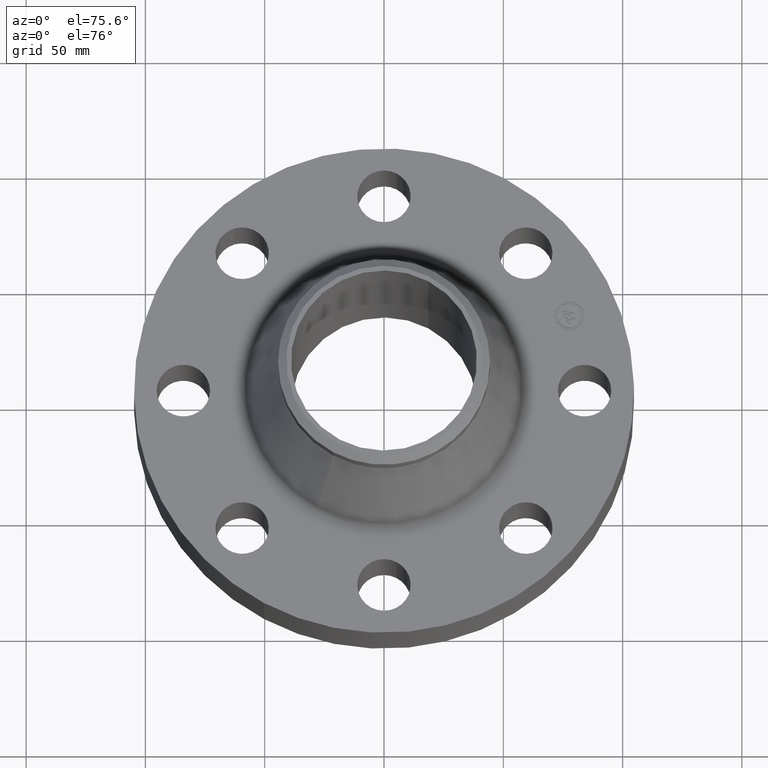
[diagram: clean part render]
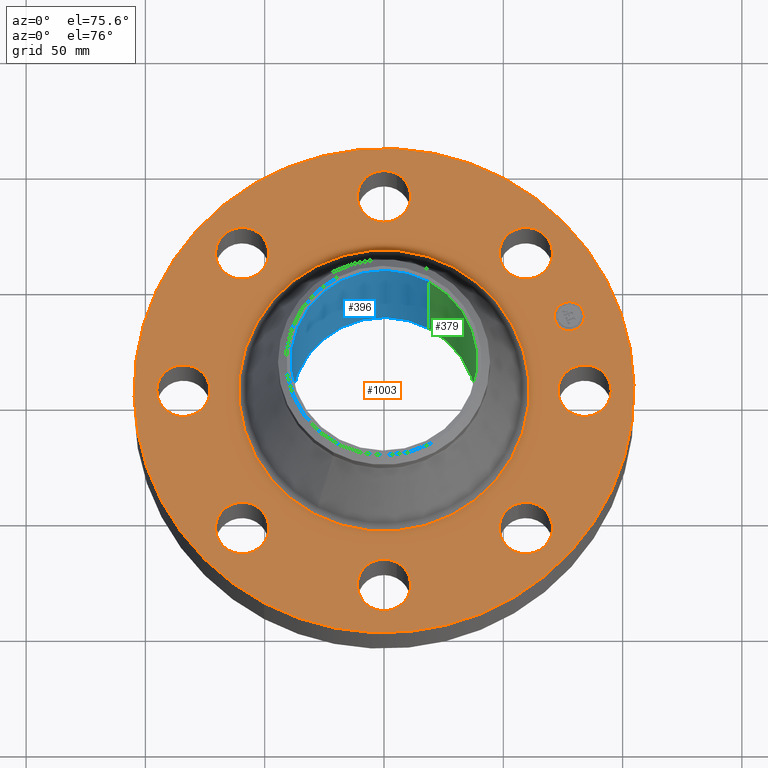
[diagram: same view with three faces highlighted in distinct colors, each labeled with its STEP entity id]
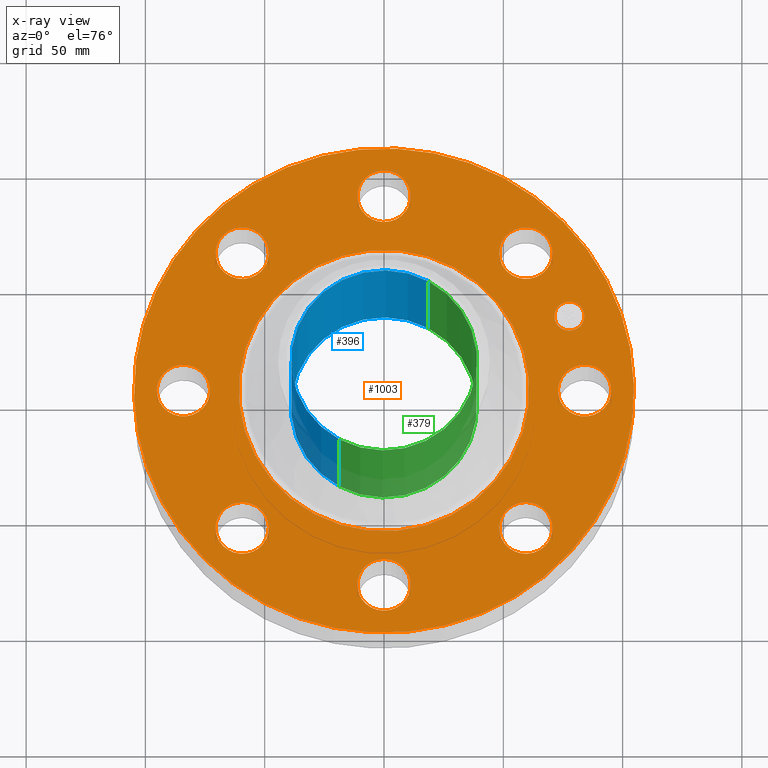
[diagram: x-ray of the same camera — body ghosted, the three highlighted faces saturated]
A machine part, auxiliary view with three faces highlighted in distinct colors.
The next image is the same camera in x-ray (body ghosted, the three faces saturated) — at least one of them is partly hidden behind the body in this view.
Their STEP definitions:

[orange] entity #1003 — the highlighted planar face has unit normal (0, 0, -1).
#65=AXIS2_PLACEMENT_3D('Circle Axis2P3D',#63,#64,$) ;
#82=AXIS2_PLACEMENT_3D('Circle Axis2P3D',#80,#81,$) ;
#115=AXIS2_PLACEMENT_3D('Circle Axis2P3D',#113,#114,$) ;
#139=AXIS2_PLACEMENT_3D('Circle Axis2P3D',#137,#138,$) ;
#156=AXIS2_PLACEMENT_3D('Circle Axis2P3D',#154,#155,$) ;
#191=AXIS2_PLACEMENT_3D('Circle Axis2P3D',#189,#190,$) ;
#660=AXIS2_PLACEMENT_3D('Circle Axis2P3D',#658,#659,$) ;
#672=AXIS2_PLACEMENT_3D('Circle Axis2P3D',#670,#671,$) ;
#703=AXIS2_PLACEMENT_3D('Circle Axis2P3D',#701,#702,$) ;
#715=AXIS2_PLACEMENT_3D('Circle Axis2P3D',#713,#714,$) ;
#746=AXIS2_PLACEMENT_3D('Circle Axis2P3D',#744,#745,$) ;
#758=AXIS2_PLACEMENT_3D('Circle Axis2P3D',#756,#757,$) ;
#789=AXIS2_PLACEMENT_3D('Circle Axis2P3D',#787,#788,$) ;
#801=AXIS2_PLACEMENT_3D('Circle Axis2P3D',#799,#800,$) ;
#832=AXIS2_PLACEMENT_3D('Circle Axis2P3D',#830,#831,$) ;
#844=AXIS2_PLACEMENT_3D('Circle Axis2P3D',#842,#843,$) ;
#875=AXIS2_PLACEMENT_3D('Circle Axis2P3D',#873,#874,$) ;
#887=AXIS2_PLACEMENT_3D('Circle Axis2P3D',#885,#886,$) ;
#918=AXIS2_PLACEMENT_3D('Circle Axis2P3D',#916,#917,$) ;
#930=AXIS2_PLACEMENT_3D('Circle Axis2P3D',#928,#929,$) ;
#943=AXIS2_PLACEMENT_3D('Plane Axis2P3D',#940,#941,#942) ;
#987=AXIS2_PLACEMENT_3D('Circle Axis2P3D',#985,#986,$) ;
#996=AXIS2_PLACEMENT_3D('Circle Axis2P3D',#994,#995,$) ;
#46=CARTESIAN_POINT('Vertex',(2.92386367278,0.210947236987,1.06)) ;
#60=CARTESIAN_POINT('Vertex',(3.69613632725,-0.210947236987,1.06)) ;
#63=CARTESIAN_POINT('Axis2P3D Location',(3.31000000001,0.,1.06)) ;
#80=CARTESIAN_POINT('Axis2P3D Location',(3.31000000001,0.,1.06)) ;
#110=CARTESIAN_POINT('Vertex',(-1.97763034675,-3.62002806781,1.06)) ;
#113=CARTESIAN_POINT('Axis2P3D Location',(0.,0.,1.06)) ;
#117=CARTESIAN_POINT('Vertex',(1.97763034675,3.62002806781,1.06)) ;
#137=CARTESIAN_POINT('Axis2P3D Location',(0.,0.,1.06)) ;
#154=CARTESIAN_POINT('Axis2P3D Location',(0.,0.,1.06)) ;
#158=CARTESIAN_POINT('Vertex',(1.14876916276,2.10280784752,1.06)) ;
#160=CARTESIAN_POINT('Vertex',(-1.14876916276,-2.10280784752,1.06)) ;
#189=CARTESIAN_POINT('Axis2P3D Location',(0.,0.,1.06)) ;
#648=CARTESIAN_POINT('Vertex',(-2.21664605203,1.91832160854,1.06)) ;
#655=CARTESIAN_POINT('Vertex',(-2.46440083944,2.76272528293,1.06)) ;
#658=CARTESIAN_POINT('Axis2P3D Location',(-2.34052344574,2.34052344574,1.06)) ;
#670=CARTESIAN_POINT('Axis2P3D Location',(-2.34052344574,2.34052344574,1.06)) ;
#691=CARTESIAN_POINT('Vertex',(0.210947236987,-2.92386367278,1.06)) ;
#698=CARTESIAN_POINT('Vertex',(-0.210947236987,-3.69613632725,1.06)) ;
#701=CARTESIAN_POINT('Axis2P3D Location',(-3.56803423843E-016,-3.31000000001,1.06)) ;
#713=CARTESIAN_POINT('Axis2P3D Location',(-3.56803423843E-016,-3.31000000001,1.06)) ;
#734=CARTESIAN_POINT('Vertex',(-0.210947236987,2.92386367278,1.06)) ;
#741=CARTESIAN_POINT('Vertex',(0.210947236987,3.69613632725,1.06)) ;
#744=CARTESIAN_POINT('Axis2P3D Location',(-6.08037135779E-016,3.31000000001,1.06)) ;
#756=CARTESIAN_POINT('Axis2P3D Location',(-6.08037135779E-016,3.31000000001,1.06)) ;
#777=CARTESIAN_POINT('Vertex',(-1.91832160854,-2.21664605203,1.06)) ;
#784=CARTESIAN_POINT('Vertex',(-2.76272528293,-2.46440083944,1.06)) ;
#787=CARTESIAN_POINT('Axis2P3D Location',(-2.34052344574,-2.34052344574,1.06)) ;
#799=CARTESIAN_POINT('Axis2P3D Location',(-2.34052344574,-2.34052344574,1.06)) ;
#820=CARTESIAN_POINT('Vertex',(1.91832160854,2.21664605203,1.06)) ;
#827=CARTESIAN_POINT('Vertex',(2.76272528293,2.46440083944,1.06)) ;
#830=CARTESIAN_POINT('Axis2P3D Location',(2.34052344574,2.34052344574,1.06)) ;
#842=CARTESIAN_POINT('Axis2P3D Location',(2.34052344574,2.34052344574,1.06)) ;
#863=CARTESIAN_POINT('Vertex',(-2.92386367278,-0.210947236987,1.06)) ;
#870=CARTESIAN_POINT('Vertex',(-3.69613632725,0.210947236987,1.06)) ;
#873=CARTESIAN_POINT('Axis2P3D Location',(-3.31000000001,-4.05358090519E-016,1.06)) ;
#885=CARTESIAN_POINT('Axis2P3D Location',(-3.31000000001,-4.05358090519E-016,1.06)) ;
#906=CARTESIAN_POINT('Vertex',(2.21664605203,-1.91832160854,1.06)) ;
#913=CARTESIAN_POINT('Vertex',(2.46440083944,-2.76272528293,1.06)) ;
#916=CARTESIAN_POINT('Axis2P3D Location',(2.34052344574,-2.34052344574,1.06)) ;
#928=CARTESIAN_POINT('Axis2P3D Location',(2.34052344574,-2.34052344574,1.06)) ;
#940=CARTESIAN_POINT('Axis2P3D Location',(0.,4.12500000002,1.06)) ;
#985=CARTESIAN_POINT('Axis2P3D Location',(3.05804125262,1.26668216113,1.06)) ;
#989=CARTESIAN_POINT('Vertex',(2.96332710311,1.49534234543,1.06)) ;
#991=CARTESIAN_POINT('Vertex',(3.15275540214,1.03802197684,1.06)) ;
#994=CARTESIAN_POINT('Axis2P3D Location',(3.05804125262,1.26668216113,1.06)) ;
#64=DIRECTION('Axis2P3D Direction',(0.,-0.,-0.0393700787402)) ;
#81=DIRECTION('Axis2P3D Direction',(0.,-0.,-0.0393700787402)) ;
#114=DIRECTION('Axis2P3D Direction',(0.,0.,-0.0393700787402)) ;
#138=DIRECTION('Axis2P3D Direction',(0.,0.,-0.0393700787402)) ;
#155=DIRECTION('Axis2P3D Direction',(0.,0.,-0.0393700787402)) ;
#190=DIRECTION('Axis2P3D Direction',(0.,0.,-0.0393700787402)) ;
#659=DIRECTION('Axis2P3D Direction',(0.,0.,-0.0393700787402)) ;
#671=DIRECTION('Axis2P3D Direction',(0.,0.,-0.0393700787402)) ;
#702=DIRECTION('Axis2P3D Direction',(0.,-0.,-0.0393700787402)) ;
#714=DIRECTION('Axis2P3D Direction',(0.,-0.,-0.0393700787402)) ;
#745=DIRECTION('Axis2P3D Direction',(0.,0.,-0.0393700787402)) ;
#757=DIRECTION('Axis2P3D Direction',(0.,0.,-0.0393700787402)) ;
#788=DIRECTION('Axis2P3D Direction',(-0.,0.,-0.0393700787402)) ;
#800=DIRECTION('Axis2P3D Direction',(-0.,0.,-0.0393700787402)) ;
#831=DIRECTION('Axis2P3D Direction',(0.,0.,-0.0393700787402)) ;
#843=DIRECTION('Axis2P3D Direction',(0.,0.,-0.0393700787402)) ;
#874=DIRECTION('Axis2P3D Direction',(-0.,0.,-0.0393700787402)) ;
#886=DIRECTION('Axis2P3D Direction',(-0.,0.,-0.0393700787402)) ;
#917=DIRECTION('Axis2P3D Direction',(0.,-0.,-0.0393700787402)) ;
#929=DIRECTION('Axis2P3D Direction',(0.,-0.,-0.0393700787402)) ;
#941=DIRECTION('Axis2P3D Direction',(0.,0.,-0.0393700787402)) ;
#942=DIRECTION('Axis2P3D XDirection',(0.0393700787402,0.,0.)) ;
#986=DIRECTION('Axis2P3D Direction',(0.,0.,-0.0393700787402)) ;
#995=DIRECTION('Axis2P3D Direction',(0.,0.,-0.0393700787402)) ;
#946=ORIENTED_EDGE('',*,*,#141,.F.) ;
#947=ORIENTED_EDGE('',*,*,#119,.F.) ;
#950=ORIENTED_EDGE('',*,*,#67,.T.) ;
#951=ORIENTED_EDGE('',*,*,#84,.T.) ;
#954=ORIENTED_EDGE('',*,*,#193,.T.) ;
#955=ORIENTED_EDGE('',*,*,#162,.T.) ;
#958=ORIENTED_EDGE('',*,*,#932,.T.) ;
#959=ORIENTED_EDGE('',*,*,#920,.T.) ;
#962=ORIENTED_EDGE('',*,*,#717,.T.) ;
#963=ORIENTED_EDGE('',*,*,#705,.T.) ;
#966=ORIENTED_EDGE('',*,*,#803,.T.) ;
#967=ORIENTED_EDGE('',*,*,#791,.T.) ;
#970=ORIENTED_EDGE('',*,*,#889,.T.) ;
#971=ORIENTED_EDGE('',*,*,#877,.T.) ;
#974=ORIENTED_EDGE('',*,*,#674,.T.) ;
#975=ORIENTED_EDGE('',*,*,#662,.T.) ;
#978=ORIENTED_EDGE('',*,*,#760,.T.) ;
#979=ORIENTED_EDGE('',*,*,#748,.T.) ;
#982=ORIENTED_EDGE('',*,*,#846,.T.) ;
#983=ORIENTED_EDGE('',*,*,#834,.T.) ;
#1000=ORIENTED_EDGE('',*,*,#993,.T.) ;
#1001=ORIENTED_EDGE('',*,*,#998,.T.) ;
#952=FACE_BOUND('',#949,.T.) ;
#956=FACE_BOUND('',#953,.T.) ;
#960=FACE_BOUND('',#957,.T.) ;
#964=FACE_BOUND('',#961,.T.) ;
#968=FACE_BOUND('',#965,.T.) ;
#972=FACE_BOUND('',#969,.T.) ;
#976=FACE_BOUND('',#973,.T.) ;
#980=FACE_BOUND('',#977,.T.) ;
#984=FACE_BOUND('',#981,.T.) ;
#1002=FACE_BOUND('',#999,.T.) ;
#1003=ADVANCED_FACE('PartBody',(#948,#952,#956,#960,#964,#968,#972,#976,#980,#984,#1002),#944,.F.) ;
#66=CIRCLE('generated circle',#65,0.440000000002) ;
#83=CIRCLE('generated circle',#82,0.440000000002) ;
#116=CIRCLE('generated circle',#115,4.12500000002) ;
#140=CIRCLE('generated circle',#139,4.12500000002) ;
#157=CIRCLE('generated circle',#156,2.39613677258) ;
#192=CIRCLE('generated circle',#191,2.39613677258) ;
#661=CIRCLE('generated circle',#660,0.440000000002) ;
#673=CIRCLE('generated circle',#672,0.440000000002) ;
#704=CIRCLE('generated circle',#703,0.440000000002) ;
#716=CIRCLE('generated circle',#715,0.440000000002) ;
#747=CIRCLE('generated circle',#746,0.440000000002) ;
#759=CIRCLE('generated circle',#758,0.440000000002) ;
#790=CIRCLE('generated circle',#789,0.440000000002) ;
#802=CIRCLE('generated circle',#801,0.440000000002) ;
#833=CIRCLE('generated circle',#832,0.440000000002) ;
#845=CIRCLE('generated circle',#844,0.440000000002) ;
#876=CIRCLE('generated circle',#875,0.440000000002) ;
#888=CIRCLE('generated circle',#887,0.440000000002) ;
#919=CIRCLE('generated circle',#918,0.440000000002) ;
#931=CIRCLE('generated circle',#930,0.440000000002) ;
#988=CIRCLE('generated circle',#987,0.247500000001) ;
#997=CIRCLE('generated circle',#996,0.247500000001) ;
#67=EDGE_CURVE('',#47,#61,#66,.T.) ;
#84=EDGE_CURVE('',#61,#47,#83,.T.) ;
#119=EDGE_CURVE('',#111,#118,#116,.T.) ;
#141=EDGE_CURVE('',#118,#111,#140,.T.) ;
#162=EDGE_CURVE('',#159,#161,#157,.T.) ;
#193=EDGE_CURVE('',#161,#159,#192,.T.) ;
#662=EDGE_CURVE('',#649,#656,#661,.T.) ;
#674=EDGE_CURVE('',#656,#649,#673,.T.) ;
#705=EDGE_CURVE('',#692,#699,#704,.T.) ;
#717=EDGE_CURVE('',#699,#692,#716,.T.) ;
#748=EDGE_CURVE('',#735,#742,#747,.T.) ;
#760=EDGE_CURVE('',#742,#735,#759,.T.) ;
#791=EDGE_CURVE('',#778,#785,#790,.T.) ;
#803=EDGE_CURVE('',#785,#778,#802,.T.) ;
#834=EDGE_CURVE('',#821,#828,#833,.T.) ;
#846=EDGE_CURVE('',#828,#821,#845,.T.) ;
#877=EDGE_CURVE('',#864,#871,#876,.T.) ;
#889=EDGE_CURVE('',#871,#864,#888,.T.) ;
#920=EDGE_CURVE('',#907,#914,#919,.T.) ;
#932=EDGE_CURVE('',#914,#907,#931,.T.) ;
#993=EDGE_CURVE('',#990,#992,#988,.T.) ;
#998=EDGE_CURVE('',#992,#990,#997,.T.) ;
#945=EDGE_LOOP('',(#946,#947)) ;
#949=EDGE_LOOP('',(#950,#951)) ;
#953=EDGE_LOOP('',(#954,#955)) ;
#957=EDGE_LOOP('',(#958,#959)) ;
#961=EDGE_LOOP('',(#962,#963)) ;
#965=EDGE_LOOP('',(#966,#967)) ;
#969=EDGE_LOOP('',(#970,#971)) ;
#973=EDGE_LOOP('',(#974,#975)) ;
#977=EDGE_LOOP('',(#978,#979)) ;
#981=EDGE_LOOP('',(#982,#983)) ;
#999=EDGE_LOOP('',(#1000,#1001)) ;
#948=FACE_OUTER_BOUND('',#945,.T.) ;
#944=PLANE('',#943) ;
#47=VERTEX_POINT('',#46) ;
#61=VERTEX_POINT('',#60) ;
#111=VERTEX_POINT('',#110) ;
#118=VERTEX_POINT('',#117) ;
#159=VERTEX_POINT('',#158) ;
#161=VERTEX_POINT('',#160) ;
#649=VERTEX_POINT('',#648) ;
#656=VERTEX_POINT('',#655) ;
#692=VERTEX_POINT('',#691) ;
#699=VERTEX_POINT('',#698) ;
#735=VERTEX_POINT('',#734) ;
#742=VERTEX_POINT('',#741) ;
#778=VERTEX_POINT('',#777) ;
#785=VERTEX_POINT('',#784) ;
#821=VERTEX_POINT('',#820) ;
#828=VERTEX_POINT('',#827) ;
#864=VERTEX_POINT('',#863) ;
#871=VERTEX_POINT('',#870) ;
#907=VERTEX_POINT('',#906) ;
#914=VERTEX_POINT('',#913) ;
#990=VERTEX_POINT('',#989) ;
#992=VERTEX_POINT('',#991) ;

[blue] entity #396 — the highlighted cylindrical surface (partial cylindrical patch) has radius 38.9636 mm, axis along (0, 0, -1).
#343=AXIS2_PLACEMENT_3D('Cylinder Axis2P3D',#340,#341,#342) ;
#382=AXIS2_PLACEMENT_3D('Circle Axis2P3D',#380,#381,$) ;
#387=AXIS2_PLACEMENT_3D('Circle Axis2P3D',#385,#386,$) ;
#340=CARTESIAN_POINT('Axis2P3D Location',(0.,0.,1.49875000001)) ;
#349=CARTESIAN_POINT('Vertex',(0.735438776222,1.34621164995,3.06000000001)) ;
#351=CARTESIAN_POINT('Vertex',(-0.735438776222,-1.34621164995,3.06000000001)) ;
#354=CARTESIAN_POINT('Line Origine',(0.735438776222,1.34621164995,1.49875000001)) ;
#358=CARTESIAN_POINT('Vertex',(0.735438776222,1.34621164995,-0.0625000000003)) ;
#365=CARTESIAN_POINT('Vertex',(-0.735438776222,-1.34621164995,-0.0625000000003)) ;
#368=CARTESIAN_POINT('Line Origine',(-0.735438776222,-1.34621164995,1.49875000001)) ;
#380=CARTESIAN_POINT('Axis2P3D Location',(0.,0.,3.06000000001)) ;
#385=CARTESIAN_POINT('Axis2P3D Location',(0.,0.,-0.0625000000003)) ;
#341=DIRECTION('Axis2P3D Direction',(0.,0.,-0.0393700787402)) ;
#342=DIRECTION('Axis2P3D XDirection',(-0.0188750212049,-0.0345504945626,0.)) ;
#355=DIRECTION('Vector Direction',(0.,0.,-0.0393700787402)) ;
#369=DIRECTION('Vector Direction',(0.,0.,-0.0393700787402)) ;
#381=DIRECTION('Axis2P3D Direction',(0.,0.,-0.0393700787402)) ;
#386=DIRECTION('Axis2P3D Direction',(0.,0.,-0.0393700787402)) ;
#356=VECTOR('Line Direction',#355,0.0393700787402) ;
#370=VECTOR('Line Direction',#369,0.0393700787402) ;
#391=ORIENTED_EDGE('',*,*,#384,.F.) ;
#392=ORIENTED_EDGE('',*,*,#372,.T.) ;
#393=ORIENTED_EDGE('',*,*,#389,.T.) ;
#394=ORIENTED_EDGE('',*,*,#360,.F.) ;
#396=ADVANCED_FACE('PartBody',(#395),#344,.F.) ;
#383=CIRCLE('generated circle',#382,1.53400000001) ;
#388=CIRCLE('generated circle',#387,1.53400000001) ;
#344=CYLINDRICAL_SURFACE('generated cylinder',#343,1.53400000001) ;
#360=EDGE_CURVE('',#350,#359,#357,.T.) ;
#372=EDGE_CURVE('',#352,#366,#371,.T.) ;
#384=EDGE_CURVE('',#352,#350,#383,.T.) ;
#389=EDGE_CURVE('',#366,#359,#388,.T.) ;
#390=EDGE_LOOP('',(#391,#392,#393,#394)) ;
#395=FACE_OUTER_BOUND('',#390,.T.) ;
#357=LINE('Line',#354,#356) ;
#371=LINE('Line',#368,#370) ;
#350=VERTEX_POINT('',#349) ;
#352=VERTEX_POINT('',#351) ;
#359=VERTEX_POINT('',#358) ;
#366=VERTEX_POINT('',#365) ;

[green] entity #379 — the highlighted cylindrical surface (partial cylindrical patch) has radius 38.9636 mm, axis along (0, 0, -1).
#343=AXIS2_PLACEMENT_3D('Cylinder Axis2P3D',#340,#341,#342) ;
#347=AXIS2_PLACEMENT_3D('Circle Axis2P3D',#345,#346,$) ;
#363=AXIS2_PLACEMENT_3D('Circle Axis2P3D',#361,#362,$) ;
#340=CARTESIAN_POINT('Axis2P3D Location',(0.,0.,1.49875000001)) ;
#345=CARTESIAN_POINT('Axis2P3D Location',(0.,0.,3.06000000001)) ;
#349=CARTESIAN_POINT('Vertex',(0.735438776222,1.34621164995,3.06000000001)) ;
#351=CARTESIAN_POINT('Vertex',(-0.735438776222,-1.34621164995,3.06000000001)) ;
#354=CARTESIAN_POINT('Line Origine',(0.735438776222,1.34621164995,1.49875000001)) ;
#358=CARTESIAN_POINT('Vertex',(0.735438776222,1.34621164995,-0.0625000000003)) ;
#361=CARTESIAN_POINT('Axis2P3D Location',(0.,0.,-0.0625000000003)) ;
#365=CARTESIAN_POINT('Vertex',(-0.735438776222,-1.34621164995,-0.0625000000003)) ;
#368=CARTESIAN_POINT('Line Origine',(-0.735438776222,-1.34621164995,1.49875000001)) ;
#341=DIRECTION('Axis2P3D Direction',(0.,0.,-0.0393700787402)) ;
#342=DIRECTION('Axis2P3D XDirection',(-0.0188750212049,-0.0345504945626,0.)) ;
#346=DIRECTION('Axis2P3D Direction',(0.,0.,-0.0393700787402)) ;
#355=DIRECTION('Vector Direction',(0.,0.,-0.0393700787402)) ;
#362=DIRECTION('Axis2P3D Direction',(0.,0.,-0.0393700787402)) ;
#369=DIRECTION('Vector Direction',(0.,0.,-0.0393700787402)) ;
#356=VECTOR('Line Direction',#355,0.0393700787402) ;
#370=VECTOR('Line Direction',#369,0.0393700787402) ;
#374=ORIENTED_EDGE('',*,*,#353,.F.) ;
#375=ORIENTED_EDGE('',*,*,#360,.T.) ;
#376=ORIENTED_EDGE('',*,*,#367,.T.) ;
#377=ORIENTED_EDGE('',*,*,#372,.F.) ;
#379=ADVANCED_FACE('PartBody',(#378),#344,.F.) ;
#348=CIRCLE('generated circle',#347,1.53400000001) ;
#364=CIRCLE('generated circle',#363,1.53400000001) ;
#344=CYLINDRICAL_SURFACE('generated cylinder',#343,1.53400000001) ;
#353=EDGE_CURVE('',#350,#352,#348,.T.) ;
#360=EDGE_CURVE('',#350,#359,#357,.T.) ;
#367=EDGE_CURVE('',#359,#366,#364,.T.) ;
#372=EDGE_CURVE('',#352,#366,#371,.T.) ;
#373=EDGE_LOOP('',(#374,#375,#376,#377)) ;
#378=FACE_OUTER_BOUND('',#373,.T.) ;
#357=LINE('Line',#354,#356) ;
#371=LINE('Line',#368,#370) ;
#350=VERTEX_POINT('',#349) ;
#352=VERTEX_POINT('',#351) ;
#359=VERTEX_POINT('',#358) ;
#366=VERTEX_POINT('',#365) ;